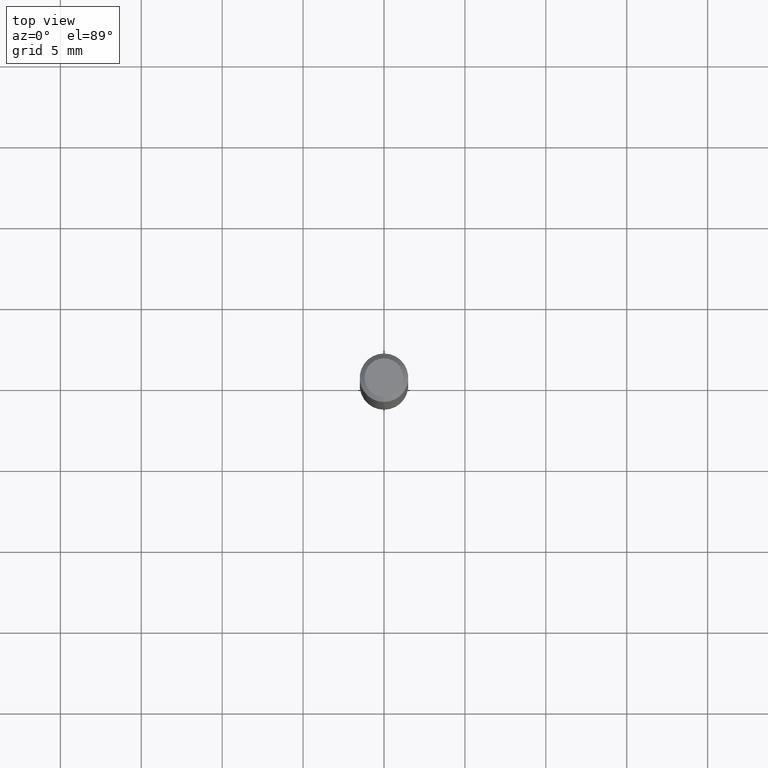
[diagram: clean part render]
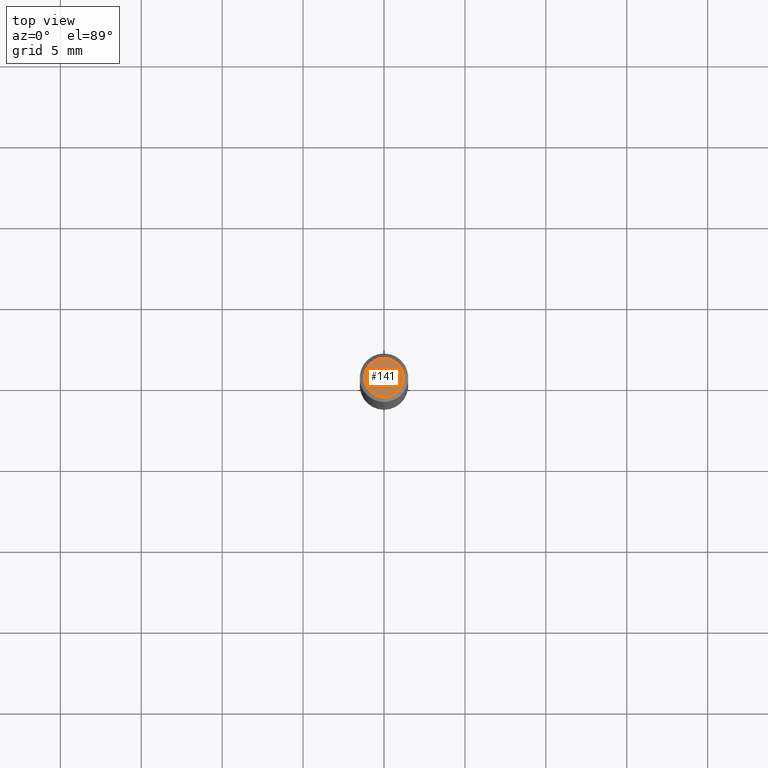
[diagram: same view with one face highlighted and labeled with its STEP entity id]
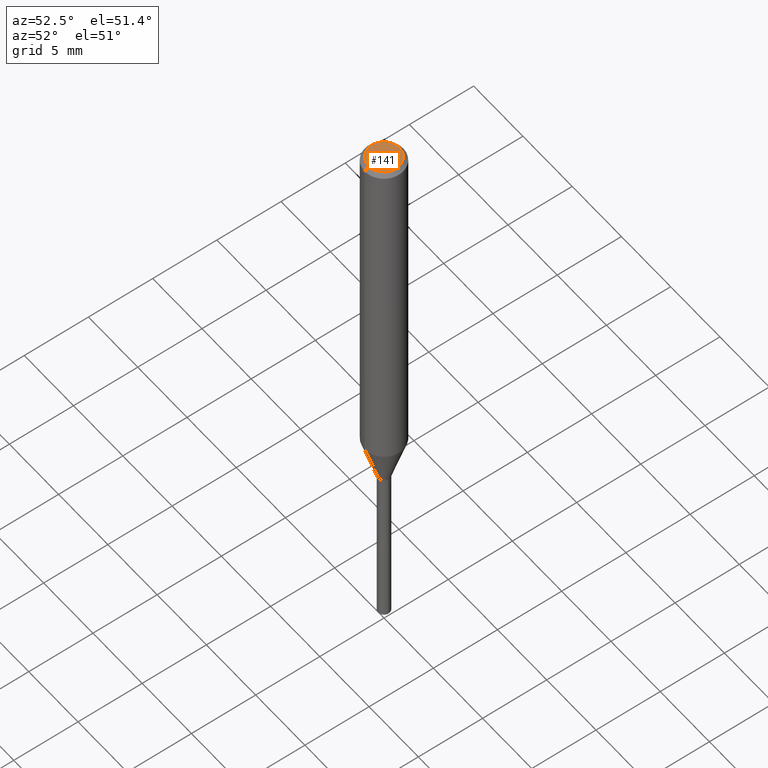
[diagram: same view with one face highlighted and labeled with its STEP entity id]
A machine part, top view. The second image highlights one B-rep face of the part: STEP entity #141.
A second angle (auxiliary view) of the same face is appended — the face is thin or edge-on in the first view.
In plain terms, the highlighted planar face has unit normal (-0, 0, 1).
Its self-contained STEP definition (entity closure, byte-faithful):
#101=VERTEX_POINT('',#238);
#141=ADVANCED_FACE('',(#284),#285,.T.);
#153=EDGE_CURVE('',#167,#101,#298,.T.);
#163=EDGE_CURVE('',#101,#167,#309,.T.);
#167=VERTEX_POINT('',#313);
#238=CARTESIAN_POINT('',(1.46952762458685E-016,-1.2,0.0));
#284=FACE_OUTER_BOUND('',#437,.T.);
#285=PLANE('',#438);
#298=CIRCLE('',#458,1.2);
#309=CIRCLE('',#473,1.2);
#313=CARTESIAN_POINT('',(0.0,1.2,0.0));
#437=EDGE_LOOP('',(#623,#624));
#438=AXIS2_PLACEMENT_3D('',#625,#626,#627);
#458=AXIS2_PLACEMENT_3D('',#639,#640,#641);
#473=AXIS2_PLACEMENT_3D('',#653,#654,#655);
#623=ORIENTED_EDGE('',*,*,#153,.F.);
#624=ORIENTED_EDGE('',*,*,#163,.F.);
#625=CARTESIAN_POINT('',(0.0,0.6,0.0));
#626=DIRECTION('',(-0.0,0.0,1.0));
#627=DIRECTION('',(0.0,-1.0,0.0));
#639=CARTESIAN_POINT('',(0.0,0.0,0.0));
#640=DIRECTION('',(0.0,0.0,-1.0));
#641=DIRECTION('',(0.0,1.0,0.0));
#653=CARTESIAN_POINT('',(0.0,0.0,0.0));
#654=DIRECTION('',(0.0,0.0,-1.0));
#655=DIRECTION('',(0.0,1.0,0.0));